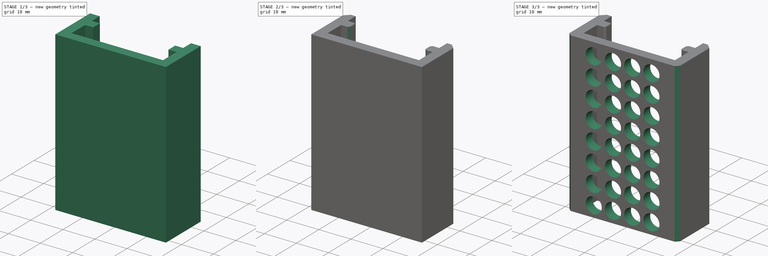
[diagram: build sequence overview — one tinted view per stage of 3, left to right]
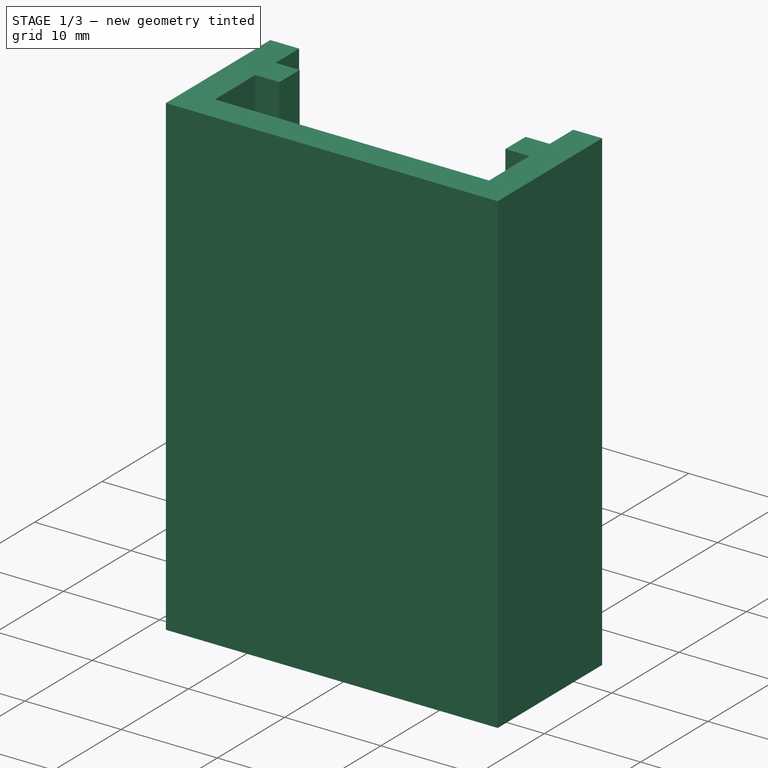
[diagram: stage 1 of 3 — iso view after this stage's code; geometry added in this stage tinted green]
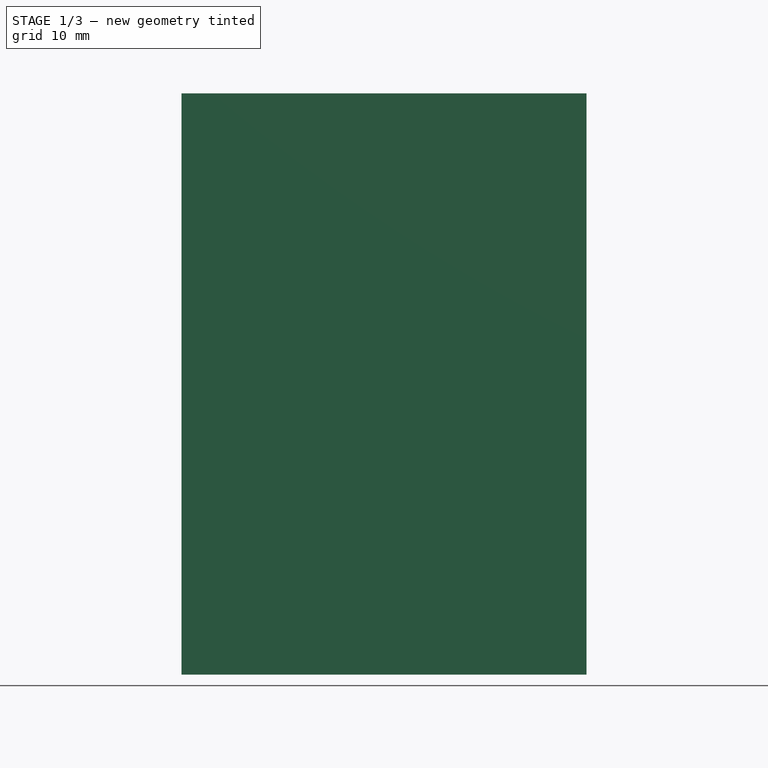
[diagram: stage 1 of 3 — front view after this stage's code; geometry added in this stage tinted green]
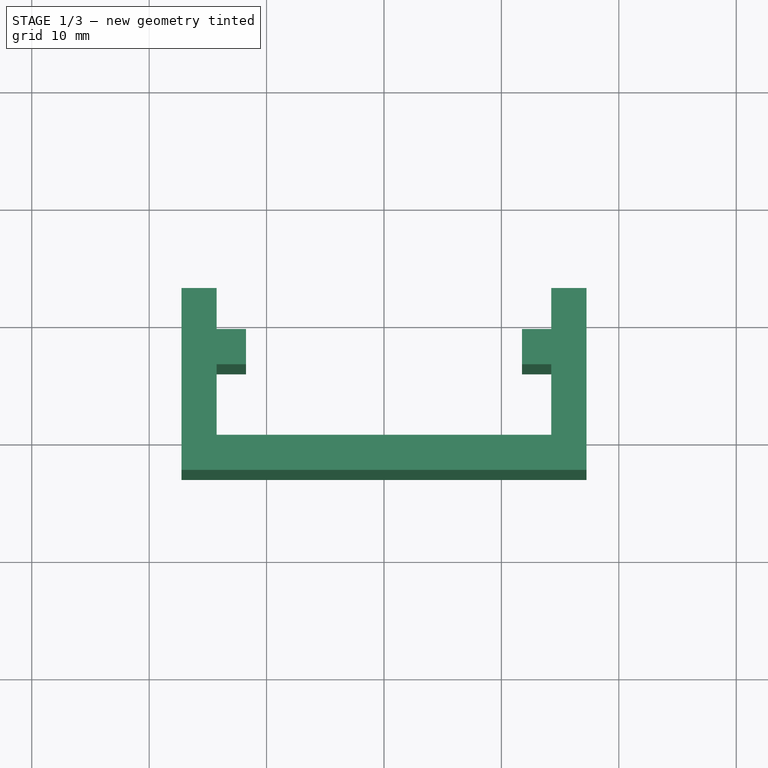
[diagram: stage 1 of 3 — top view after this stage's code; geometry added in this stage tinted green]
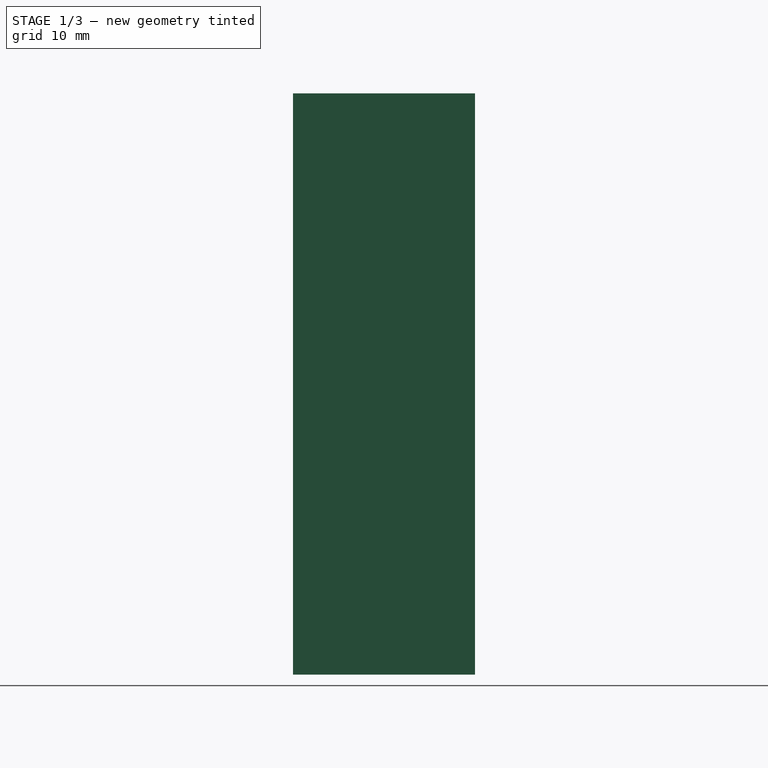
[diagram: stage 1 of 3 — right view after this stage's code; geometry added in this stage tinted green]
FCSTD DOCUMENT  (FreeCAD 0.17R13541 (Git))
Label: BikeLights1b
License: All rights reserved
LicenseURL: http://en.wikipedia.org/wiki/All_rights_reserved
objects: PartDesign::Chamfer×3, Sketcher::SketchObject×2, PartDesign::Pad×1, PartDesign::Mirrored×1, PartDesign::Pocket×1, PartDesign::Body×1
note: 11 computed .brp shape members not serialized (recipe doc carries the construction recipe); baked Part::Feature solids carry a one-line shape summary decoded from their .brp

FEATURE [Sketcher::SketchObject] Sketch
  MapMode = 5
  Support = -> [XY_Plane]
  sketch-geometry (10):
    g0: LineSegment StartX=0 StartY=0 StartZ=0 EndX=14.25 EndY=0 EndZ=0
    g1: LineSegment StartX=14.25 StartY=0 StartZ=0 EndX=14.25 EndY=6 EndZ=0
    g2: LineSegment StartX=14.25 StartY=6 StartZ=0 EndX=11.75 EndY=6 EndZ=0
    g3: LineSegment StartX=11.75 StartY=6 StartZ=0 EndX=11.75 EndY=9 EndZ=0
    g4: LineSegment StartX=11.75 StartY=9 StartZ=0 EndX=14.25 EndY=9 EndZ=0
    g5: LineSegment StartX=14.25 StartY=9 StartZ=0 EndX=14.25 EndY=12.5 EndZ=0
    g6: LineSegment StartX=14.25 StartY=12.5 StartZ=0 EndX=17.25 EndY=12.5 EndZ=0
    g7: LineSegment StartX=17.25 StartY=12.5 StartZ=0 EndX=17.25 EndY=-3 EndZ=0
    g8: LineSegment StartX=17.25 StartY=-3 StartZ=0 EndX=0 EndY=-3 EndZ=0
    g9: LineSegment StartX=0 StartY=0 StartZ=0 EndX=0 EndY=-3 EndZ=0
  constraints (30):
    c: Coincident(g0,g-1)
    c: Coincident(g1,g0)
    c: Vertical(g1)
    c: Coincident(g2,g1)
    c: Coincident(g3,g2)
    c: Coincident(g4,g3)
    c: Coincident(g5,g4)
    c: Vertical(g5)
    c: Coincident(g6,g5)
    c: Horizontal(g6)
    c: Coincident(g7,g6)
    c: Vertical(g7)
    c: PointOnObject(g8,g-2)
    c: Horizontal(g8)
    c: Coincident(g9,g-1)
    c: DistanceX(g0,g0) = 14.25
    c: DistanceX(g8,g8) = 17.25
    c: DistanceX(g6,g6) = 3
    c: Horizontal(g2)
    c: Horizontal(g4)
    c: Vertical(g3)
    c: DistanceX(g4,g4) = 2.5
    c: DistanceX(g2,g2) = 2.5
    c: DistanceY(g9,g9) = 3
    c: Horizontal(g0)
    c: DistanceY(g3,g3) = 3
    c: DistanceY(g1,g1) = 6
    c: DistanceY(g5,g5) = 3.5
    c: Coincident(g8,g9)
    c: Coincident(g7,g8)
FEATURE [PartDesign::Pad] Pad
  Length = 49.5
  Length2 = 100
  Profile = -> Sketch
  Type = 0
FEATURE [PartDesign::Mirrored] Mirrored
  BaseFeature = -> Pad
  MirrorPlane = -> Sketch [V_Axis]
  Originals = -> [Pad]
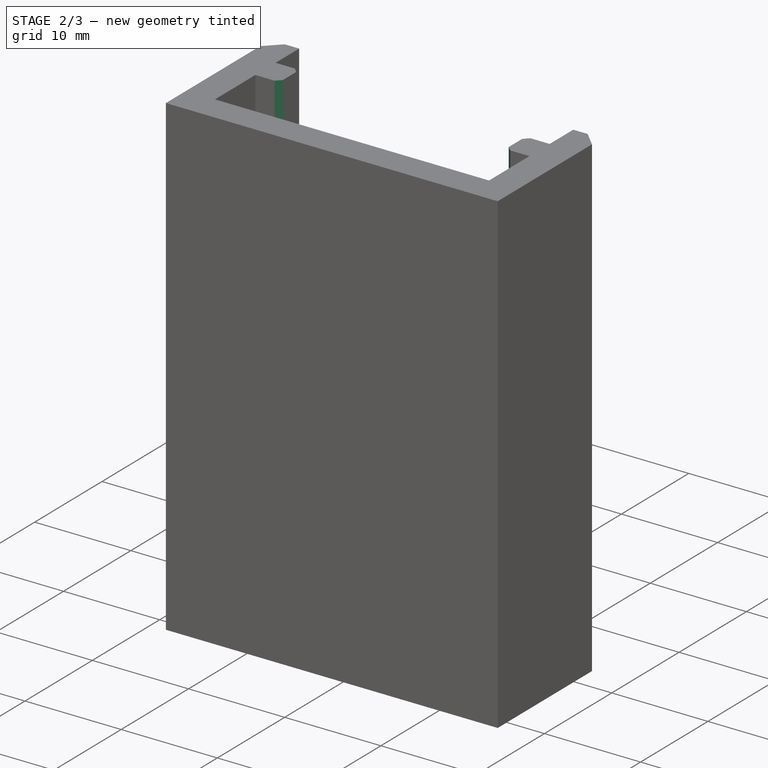
[diagram: stage 2 of 3 — iso view after this stage's code; geometry added in this stage tinted green]
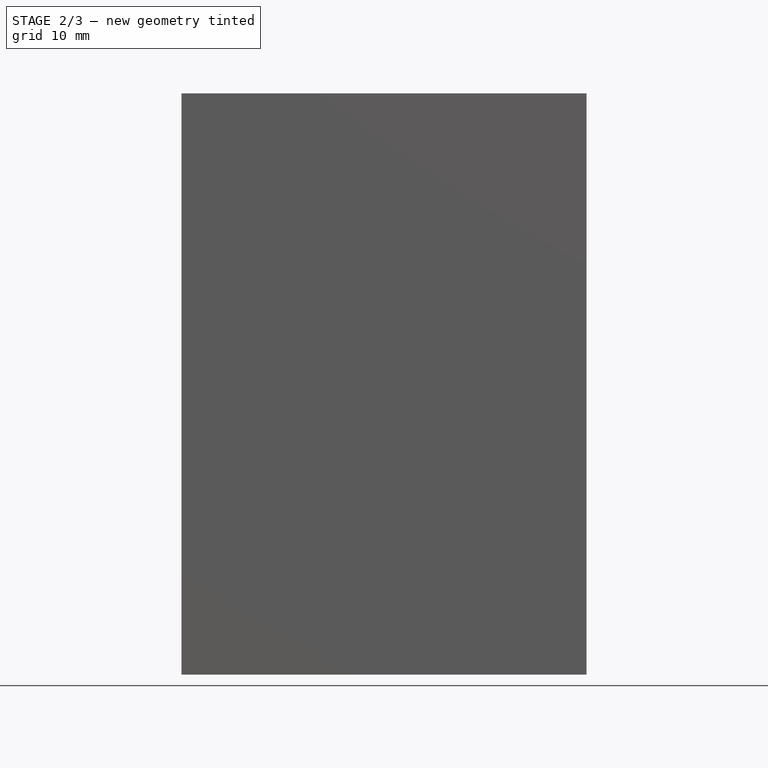
[diagram: stage 2 of 3 — front view after this stage's code; geometry added in this stage tinted green]
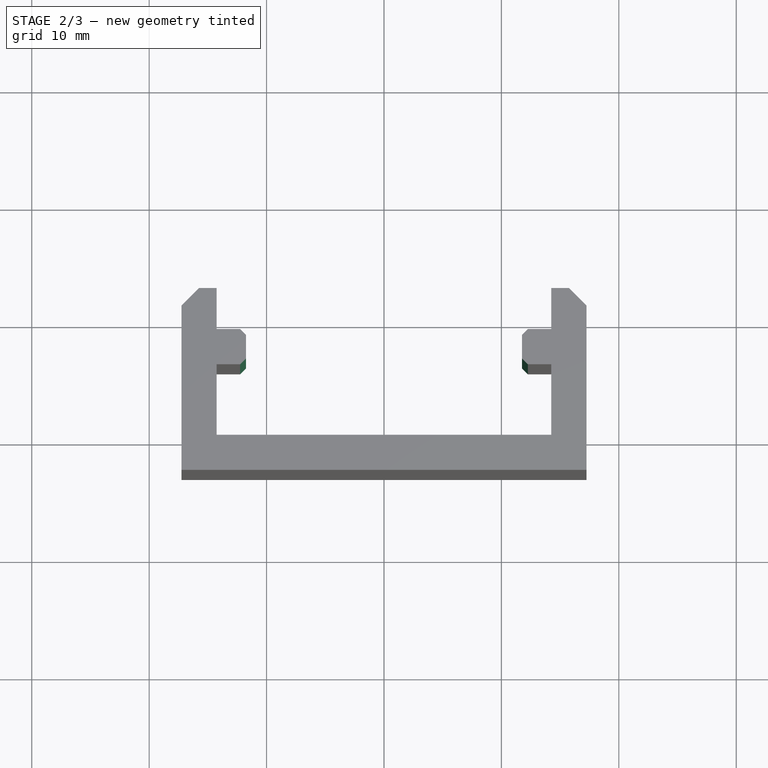
[diagram: stage 2 of 3 — top view after this stage's code; geometry added in this stage tinted green]
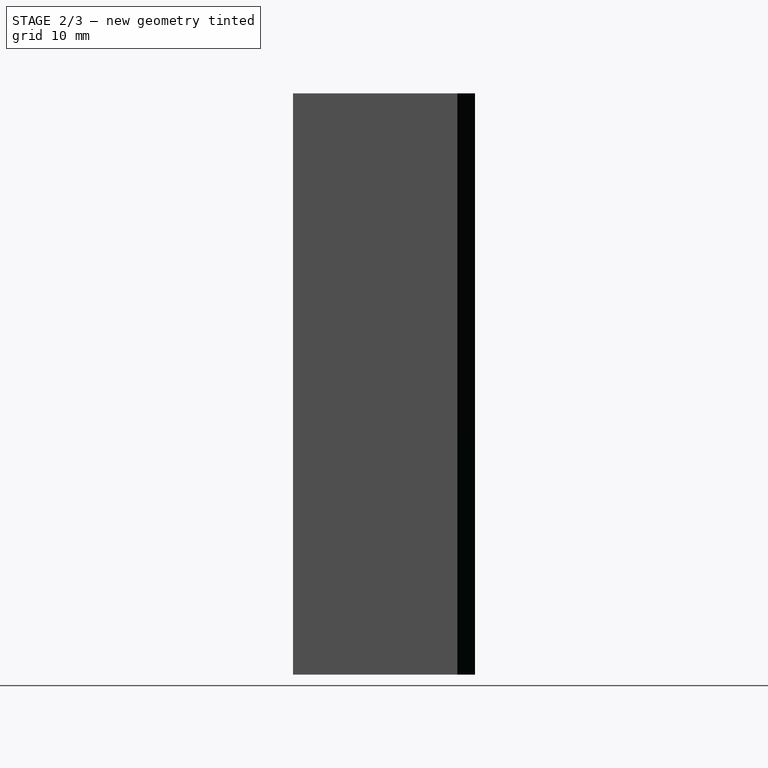
[diagram: stage 2 of 3 — right view after this stage's code; geometry added in this stage tinted green]
FEATURE [PartDesign::Chamfer] Chamfer
  Base = -> Mirrored [Edge55,Edge48]
  BaseFeature = -> Mirrored
  Size = 1.5
FEATURE [PartDesign::Chamfer] Chamfer001
  Base = -> Chamfer [Edge54,Edge56,Edge21,Edge25]
  BaseFeature = -> Chamfer
  Size = 0.5
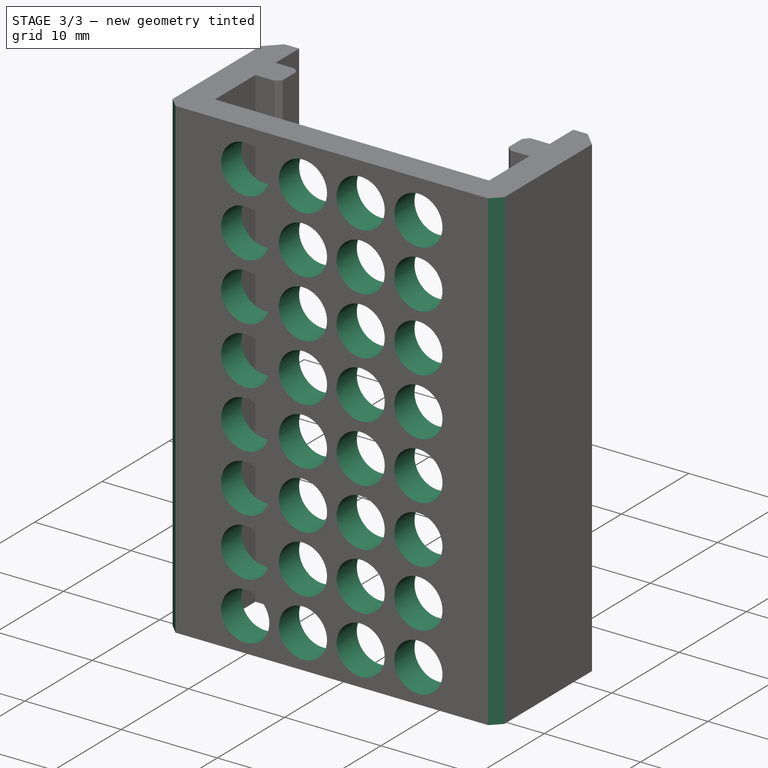
[diagram: stage 3 of 3 — iso view after this stage's code; geometry added in this stage tinted green]
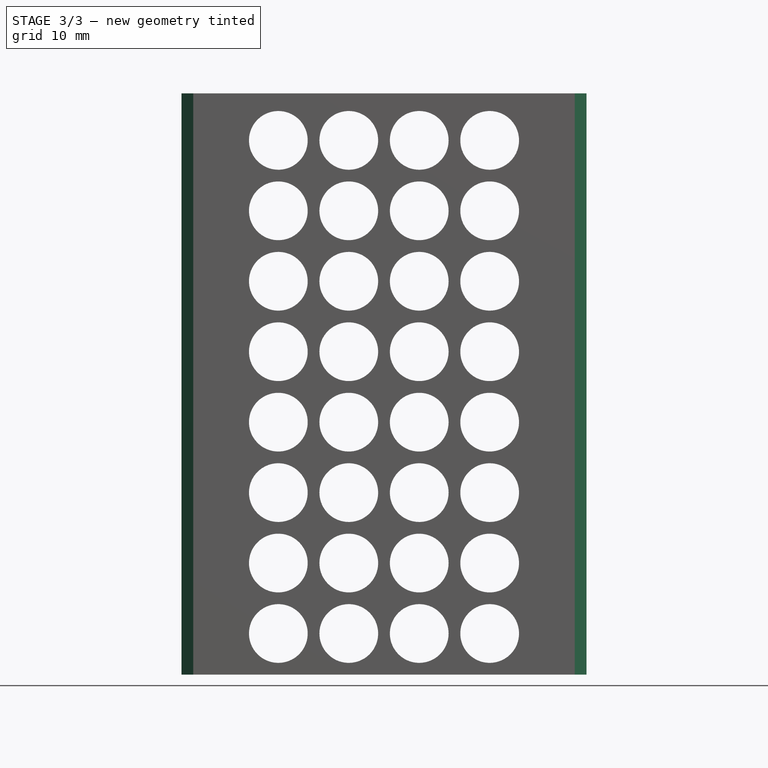
[diagram: stage 3 of 3 — front view after this stage's code; geometry added in this stage tinted green]
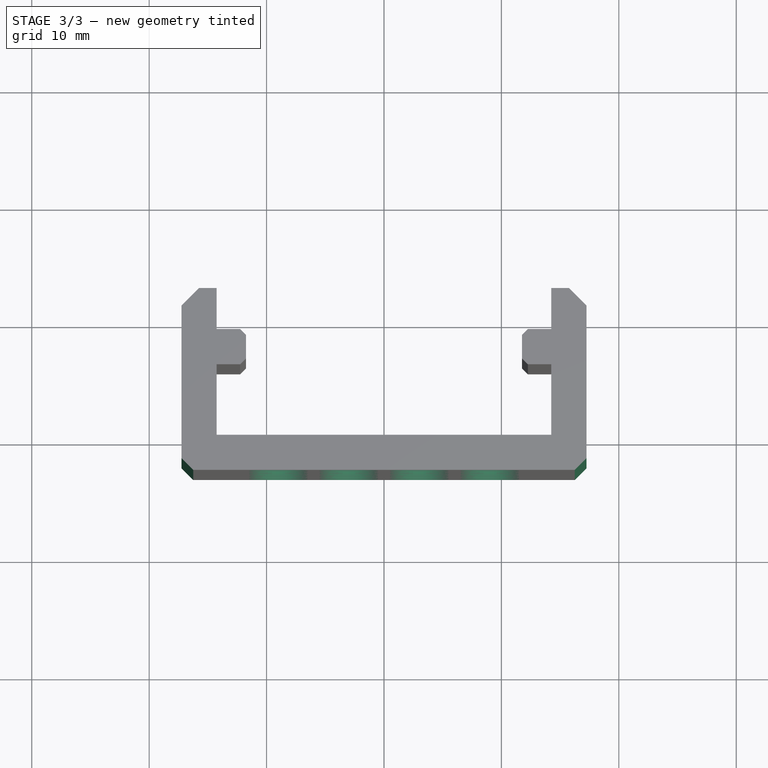
[diagram: stage 3 of 3 — top view after this stage's code; geometry added in this stage tinted green]
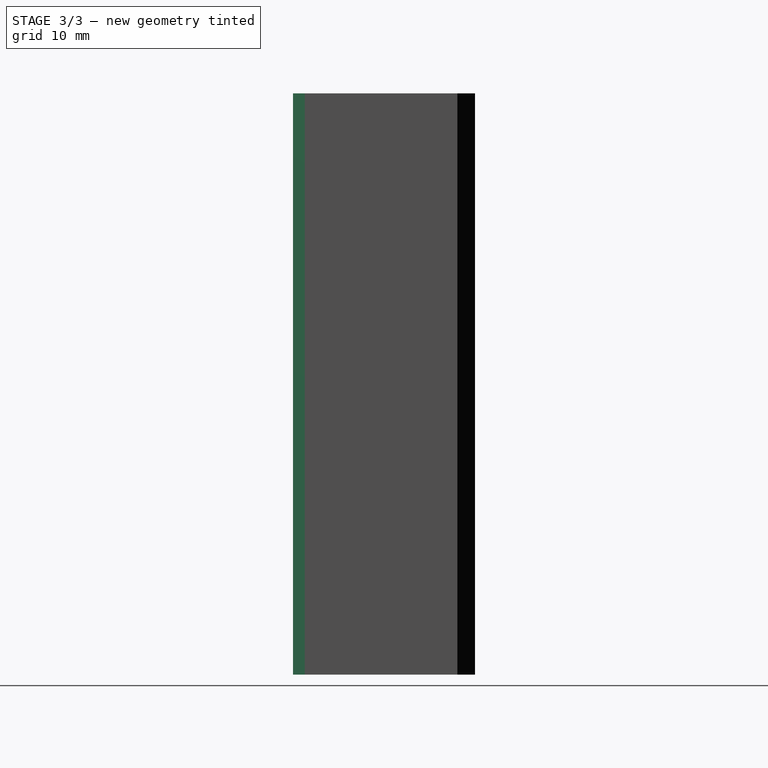
[diagram: stage 3 of 3 — right view after this stage's code; geometry added in this stage tinted green]
FEATURE [PartDesign::Chamfer] Chamfer002
  Base = -> Chamfer001 [Edge52,Edge31]
  BaseFeature = -> Chamfer001
  Size = 1
FEATURE [Sketcher::SketchObject] Sketch001
  MapMode = 5
  Placement = pos=(0,0,0) rot=(0,0.707107,0.707107;3.14159rad)
  Support = -> [Chamfer002]
  sketch-geometry (63):
    g0: Circle CenterX=-9 CenterY=3.5 CenterZ=0 NormalX=0 NormalY=0 NormalZ=1 AngleXU=0 Radius=2.5
    g1: Circle CenterX=-9 CenterY=9.5 CenterZ=0 NormalX=0 NormalY=0 NormalZ=1 AngleXU=0 Radius=2.5
    g2: LineSegment [constr] StartX=-9 StartY=3.5 StartZ=0 EndX=-9 EndY=9.5 EndZ=0
    g3: Circle CenterX=-9 CenterY=15.5 CenterZ=0 NormalX=0 NormalY=0 NormalZ=1 AngleXU=0 Radius=2.5
    g4: LineSegment [constr] StartX=-9 StartY=9.5 StartZ=0 EndX=-9 EndY=15.5 EndZ=0
    g5: Circle CenterX=-9 CenterY=21.5 CenterZ=0 NormalX=0 NormalY=0 NormalZ=1 AngleXU=0 Radius=2.5
    g6: LineSegment [constr] StartX=-9 StartY=15.5 StartZ=0 EndX=-9 EndY=21.5 EndZ=0
    g7: Circle CenterX=-9 CenterY=27.5 CenterZ=0 NormalX=0 NormalY=0 NormalZ=1 AngleXU=0 Radius=2.5
    g8: LineSegment [constr] StartX=-9 StartY=21.5 StartZ=0 EndX=-9 EndY=27.5 EndZ=0
    g9: Circle CenterX=-9 CenterY=33.5 CenterZ=0 NormalX=0 NormalY=0 NormalZ=1 AngleXU=0 Radius=2.5
    g10: LineSegment [constr] StartX=-9 StartY=27.5 StartZ=0 EndX=-9 EndY=33.5 EndZ=0
    g11: Circle CenterX=-9 CenterY=39.5 CenterZ=0 NormalX=0 NormalY=0 NormalZ=1 AngleXU=0 Radius=2.5
    g12: LineSegment [constr] StartX=-9 StartY=33.5 StartZ=0 EndX=-9 EndY=39.5 EndZ=0
    g13: Circle CenterX=-9 CenterY=45.5 CenterZ=0 NormalX=0 NormalY=0 NormalZ=1 AngleXU=0 Radius=2.5
    g14: LineSegment [constr] StartX=-9 StartY=39.5 StartZ=0 EndX=-9 EndY=45.5 EndZ=0
    g15: Circle CenterX=-3 CenterY=3.5 CenterZ=0 NormalX=0 NormalY=0 NormalZ=1 AngleXU=0 Radius=2.5
    g16: LineSegment [constr] StartX=-9 StartY=3.5 StartZ=0 EndX=-3 EndY=3.5 EndZ=0
    g17: Circle CenterX=-3 CenterY=9.5 CenterZ=0 NormalX=0 NormalY=0 NormalZ=1 AngleXU=0 Radius=2.5
    g18: LineSegment [constr] StartX=-3 StartY=3.5 StartZ=0 EndX=-3 EndY=9.5 EndZ=0
    g19: Circle CenterX=-3 CenterY=15.5 CenterZ=0 NormalX=0 NormalY=0 NormalZ=1 AngleXU=0 Radius=2.5
    g20: LineSegment [constr] StartX=-3 StartY=9.5 StartZ=0 EndX=-3 EndY=15.5 EndZ=0
    g21: Circle CenterX=-3 CenterY=21.5 CenterZ=0 NormalX=0 NormalY=0 NormalZ=1 AngleXU=0 Radius=2.5
    g22: LineSegment [constr] StartX=-3 StartY=15.5 StartZ=0 EndX=-3 EndY=21.5 EndZ=0
    g23: Circle CenterX=-3 CenterY=27.5 CenterZ=0 NormalX=0 NormalY=0 NormalZ=1 AngleXU=0 Radius=2.5
    g24: LineSegment [constr] StartX=-3 StartY=21.5 StartZ=0 EndX=-3 EndY=27.5 EndZ=0
    g25: Circle CenterX=-3 CenterY=33.5 CenterZ=0 NormalX=0 NormalY=0 NormalZ=1 AngleXU=0 Radius=2.5
    g26: LineSegment [constr] StartX=-3 StartY=27.5 StartZ=0 EndX=-3 EndY=33.5 EndZ=0
    g27: Circle CenterX=-3 CenterY=39.5 CenterZ=0 NormalX=0 NormalY=0 NormalZ=1 AngleXU=0 Radius=2.5
    g28: LineSegment [constr] StartX=-3 StartY=33.5 StartZ=0 EndX=-3 EndY=39.5 EndZ=0
    g29: Circle CenterX=-3 CenterY=45.5 CenterZ=0 NormalX=0 NormalY=0 NormalZ=1 AngleXU=0 Radius=2.5
    g30: LineSegment [constr] StartX=-3 StartY=39.5 StartZ=0 EndX=-3 EndY=45.5 EndZ=0
    g31: Circle CenterX=3 CenterY=3.5 CenterZ=0 NormalX=0 NormalY=0 NormalZ=1 AngleXU=0 Radius=2.5
    g32: LineSegment [constr] StartX=-3 StartY=3.5 StartZ=0 EndX=3 EndY=3.5 EndZ=0
    g33: Circle CenterX=3 CenterY=9.5 CenterZ=0 NormalX=0 NormalY=0 NormalZ=1 AngleXU=0 Radius=2.5
    g34: LineSegment [constr] StartX=3 StartY=3.5 StartZ=0 EndX=3 EndY=9.5 EndZ=0
    g35: Circle CenterX=3 CenterY=15.5 CenterZ=0 NormalX=0 NormalY=0 NormalZ=1 AngleXU=0 Radius=2.5
    g36: LineSegment [constr] StartX=3 StartY=9.5 StartZ=0 EndX=3 EndY=15.5 EndZ=0
    g37: Circle CenterX=3 CenterY=21.5 CenterZ=0 NormalX=0 NormalY=0 NormalZ=1 AngleXU=0 Radius=2.5
    g38: LineSegment [constr] StartX=3 StartY=15.5 StartZ=0 EndX=3 EndY=21.5 EndZ=0
    g39: Circle CenterX=3 CenterY=27.5 CenterZ=0 NormalX=0 NormalY=0 NormalZ=1 AngleXU=0 Radius=2.5
    g40: LineSegment [constr] StartX=3 StartY=21.5 StartZ=0 EndX=3 EndY=27.5 EndZ=0
    g41: Circle CenterX=3 CenterY=33.5 CenterZ=0 NormalX=0 NormalY=0 NormalZ=1 AngleXU=0 Radius=2.5
    g42: LineSegment [constr] StartX=3 StartY=27.5 StartZ=0 EndX=3 EndY=33.5 EndZ=0
    g43: Circle CenterX=3 CenterY=39.5 CenterZ=0 NormalX=0 NormalY=0 NormalZ=1 AngleXU=0 Radius=2.5
    g44: LineSegment [constr] StartX=3 StartY=33.5 StartZ=0 EndX=3 EndY=39.5 EndZ=0
    g45: Circle CenterX=3 CenterY=45.5 CenterZ=0 NormalX=0 NormalY=0 NormalZ=1 AngleXU=0 Radius=2.5
    g46: LineSegment [constr] StartX=3 StartY=39.5 StartZ=0 EndX=3 EndY=45.5 EndZ=0
    g47: Circle CenterX=9 CenterY=3.5 CenterZ=0 NormalX=0 NormalY=0 NormalZ=1 AngleXU=0 Radius=2.5
    g48: LineSegment [constr] StartX=3 StartY=3.5 StartZ=0 EndX=9 EndY=3.5 EndZ=0
    g49: Circle CenterX=9 CenterY=9.5 CenterZ=0 NormalX=0 NormalY=0 NormalZ=1 AngleXU=0 Radius=2.5
    g50: LineSegment [constr] StartX=9 StartY=3.5 StartZ=0 EndX=9 EndY=9.5 EndZ=0
    g51: Circle CenterX=9 CenterY=15.5 CenterZ=0 NormalX=0 NormalY=0 NormalZ=1 AngleXU=0 Radius=2.5
    g52: LineSegment [constr] StartX=9 StartY=9.5 StartZ=0 EndX=9 EndY=15.5 EndZ=0
    g53: Circle CenterX=9 CenterY=21.5 CenterZ=0 NormalX=0 NormalY=0 NormalZ=1 AngleXU=0 Radius=2.5
    g54: LineSegment [constr] StartX=9 StartY=15.5 StartZ=0 EndX=9 EndY=21.5 EndZ=0
    g55: Circle CenterX=9 CenterY=27.5 CenterZ=0 NormalX=0 NormalY=0 NormalZ=1 AngleXU=0 Radius=2.5
    g56: LineSegment [constr] StartX=9 StartY=21.5 StartZ=0 EndX=9 EndY=27.5 EndZ=0
    g57: Circle CenterX=9 CenterY=33.5 CenterZ=0 NormalX=0 NormalY=0 NormalZ=1 AngleXU=0 Radius=2.5
    g58: LineSegment [constr] StartX=9 StartY=27.5 StartZ=0 EndX=9 EndY=33.5 EndZ=0
    g59: Circle CenterX=9 CenterY=39.5 CenterZ=0 NormalX=0 NormalY=0 NormalZ=1 AngleXU=0 Radius=2.5
    g60: LineSegment [constr] StartX=9 StartY=33.5 StartZ=0 EndX=9 EndY=39.5 EndZ=0
    g61: Circle CenterX=9 CenterY=45.5 CenterZ=0 NormalX=0 NormalY=0 NormalZ=1 AngleXU=0 Radius=2.5
    g62: LineSegment [constr] StartX=9 StartY=39.5 StartZ=0 EndX=9 EndY=45.5 EndZ=0
  constraints (158):
    c: DistanceX(g0) = -9
    c: DistanceY(g0) = 3.5
    c: Radius(g0) = 2.5
    c: Equal(g0,g1) = 2.5
    c: Coincident(g0,g2)
    c: Coincident(g1,g2)
    c: Distance(g2) = 6
    c: Angle(g2) = 1.5708
    c: Equal(g0,g3) = 2.5
    c: Coincident(g1,g4)
    c: Coincident(g3,g4)
    c: Equal(g2,g4)
    c: Parallel(g4,g2)
    c: Equal(g0,g5) = 2.5
    c: Coincident(g3,g6)
    c: Coincident(g5,g6)
    c: Equal(g2,g6)
    c: Parallel(g6,g2)
    c: Equal(g0,g7) = 2.5
    c: Coincident(g5,g8)
    c: Coincident(g7,g8)
    c: Equal(g2,g8)
    c: Parallel(g8,g2)
    c: Equal(g0,g9) = 2.5
    c: Coincident(g7,g10)
    c: Coincident(g9,g10)
    c: Equal(g2,g10)
    c: Parallel(g10,g2)
    c: Equal(g0,g11) = 2.5
    c: Coincident(g9,g12)
    c: Coincident(g11,g12)
    c: Equal(g2,g12)
    c: Parallel(g12,g2)
    c: Equal(g0,g13) = 2.5
    c: Coincident(g11,g14)
    c: Coincident(g13,g14)
    c: Equal(g2,g14)
    c: Parallel(g14,g2)
    c: Equal(g0,g15) = 2.5
    c: Coincident(g0,g16)
    c: Coincident(g15,g16)
    c: Distance(g16) = 6
    c: Perpendicular(g16,g2)
    c: Equal(g0,g17) = 2.5
    c: Coincident(g15,g18)
    c: Coincident(g17,g18)
    c: Equal(g2,g18)
    c: Parallel(g18,g2)
    c: Equal(g0,g19) = 2.5
    c: Coincident(g17,g20)
    c: Coincident(g19,g20)
    c: Equal(g2,g20)
    c: Parallel(g20,g2)
    c: Equal(g0,g21) = 2.5
    c: Coincident(g19,g22)
    c: Coincident(g21,g22)
    c: Equal(g2,g22)
    c: Parallel(g22,g2)
    c: Equal(g0,g23) = 2.5
    c: Coincident(g21,g24)
    c: Coincident(g23,g24)
    c: Equal(g2,g24)
    c: Parallel(g24,g2)
    c: Equal(g0,g25) = 2.5
    c: Coincident(g23,g26)
    c: Coincident(g25,g26)
    c: Equal(g2,g26)
    c: Parallel(g26,g2)
    c: Equal(g0,g27) = 2.5
    c: Coincident(g25,g28)
    c: Coincident(g27,g28)
    c: Equal(g2,g28)
    c: Parallel(g28,g2)
    c: Equal(g0,g29) = 2.5
    c: Coincident(g27,g30)
    c: Coincident(g29,g30)
    c: Equal(g2,g30)
    c: Parallel(g30,g2)
    c: Equal(g0,g31) = 2.5
    c: Coincident(g15,g32)
    c: Coincident(g31,g32)
    c: Equal(g16,g32)
    c: Perpendicular(g32,g2)
    c: Equal(g0,g33) = 2.5
    c: Coincident(g31,g34)
    c: Coincident(g33,g34)
    c: Equal(g2,g34)
    c: Parallel(g34,g2)
    c: Equal(g0,g35) = 2.5
    c: Coincident(g33,g36)
    c: Coincident(g35,g36)
    c: Equal(g2,g36)
    c: Parallel(g36,g2)
    c: Equal(g0,g37) = 2.5
    c: Coincident(g35,g38)
    c: Coincident(g37,g38)
    c: Equal(g2,g38)
    c: Parallel(g38,g2)
    c: Equal(g0,g39) = 2.5
    c: Coincident(g37,g40)
    c: Coincident(g39,g40)
    c: Equal(g2,g40)
    c: Parallel(g40,g2)
    c: Equal(g0,g41) = 2.5
    c: Coincident(g39,g42)
    c: Coincident(g41,g42)
    c: Equal(g2,g42)
    c: Parallel(g42,g2)
    c: Equal(g0,g43) = 2.5
    c: Coincident(g41,g44)
    c: Coincident(g43,g44)
    c: Equal(g2,g44)
    c: Parallel(g44,g2)
    c: Equal(g0,g45) = 2.5
    c: Coincident(g43,g46)
    c: Coincident(g45,g46)
    c: Equal(g2,g46)
    c: Parallel(g46,g2)
    c: Equal(g0,g47) = 2.5
    c: Coincident(g31,g48)
    c: Coincident(g47,g48)
    c: Equal(g16,g48)
    c: Perpendicular(g48,g2)
    c: Equal(g0,g49) = 2.5
    c: Coincident(g47,g50)
    c: Coincident(g49,g50)
    c: Equal(g2,g50)
    c: Parallel(g50,g2)
    c: Equal(g0,g51) = 2.5
    c: Coincident(g49,g52)
    c: Coincident(g51,g52)
    c: Equal(g2,g52)
    c: Parallel(g52,g2)
    c: Equal(g0,g53) = 2.5
    c: Coincident(g51,g54)
    c: Coincident(g53,g54)
    c: Equal(g2,g54)
    c: Parallel(g54,g2)
    c: Equal(g0,g55) = 2.5
    c: Coincident(g53,g56)
    c: Coincident(g55,g56)
    c: Equal(g2,g56)
    c: Parallel(g56,g2)
    c: Equal(g0,g57) = 2.5
    c: Coincident(g55,g58)
    c: Coincident(g57,g58)
    c: Equal(g2,g58)
    c: Parallel(g58,g2)
    c: Equal(g0,g59) = 2.5
    c: Coincident(g57,g60)
    c: Coincident(g59,g60)
    c: Equal(g2,g60)
    c: Parallel(g60,g2)
    c: Equal(g0,g61) = 2.5
    c: Coincident(g59,g62)
    c: Coincident(g61,g62)
    c: Equal(g2,g62)
    c: Parallel(g62,g2)
FEATURE [PartDesign::Pocket] Pocket
  BaseFeature = -> Chamfer002
  Length = 5
  Length2 = 100
  Profile = -> Sketch001
  Type = 0
FEATURE [PartDesign::Body] Body
  Group = -> [Sketch,Pad,Mirrored,Chamfer,Chamfer001,Chamfer002,Sketch001,Pocket]
  Origin = -> Origin
  Tip = -> Pocket
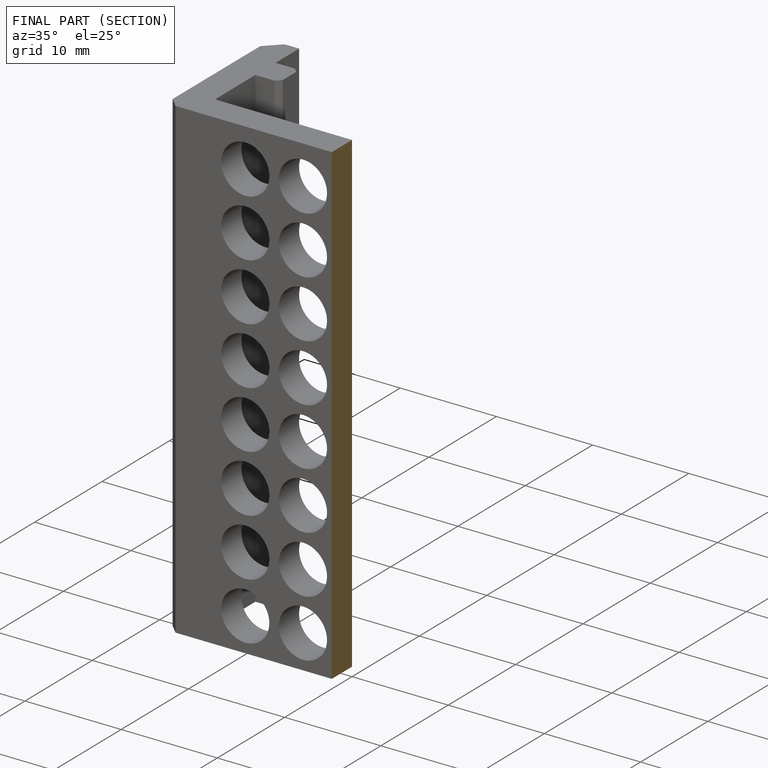
[diagram: finished part — half-section view (interior)]
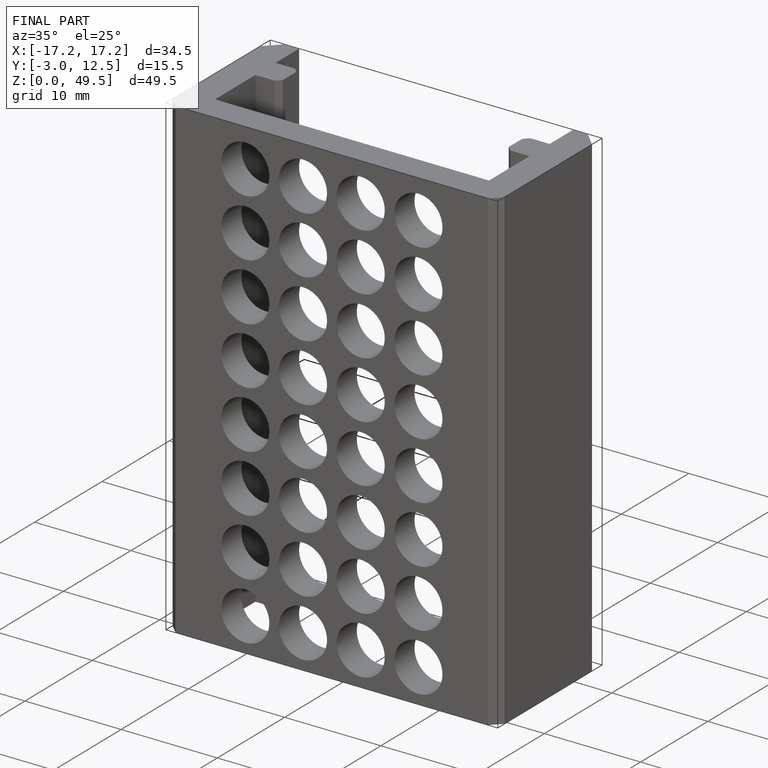
[diagram: finished part — iso view with bounding-box wireframe]
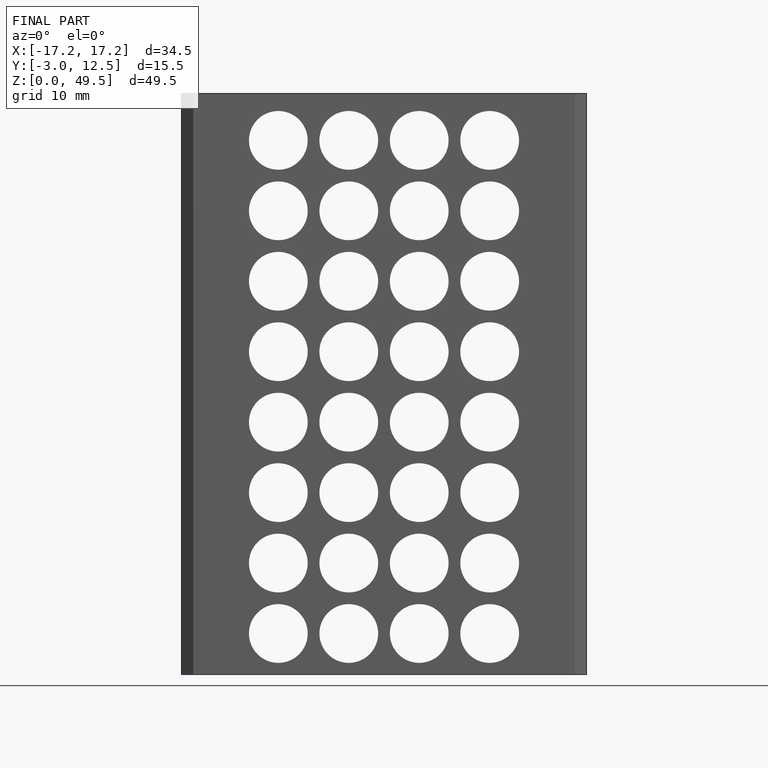
[diagram: finished part — front view with bounding-box wireframe]
